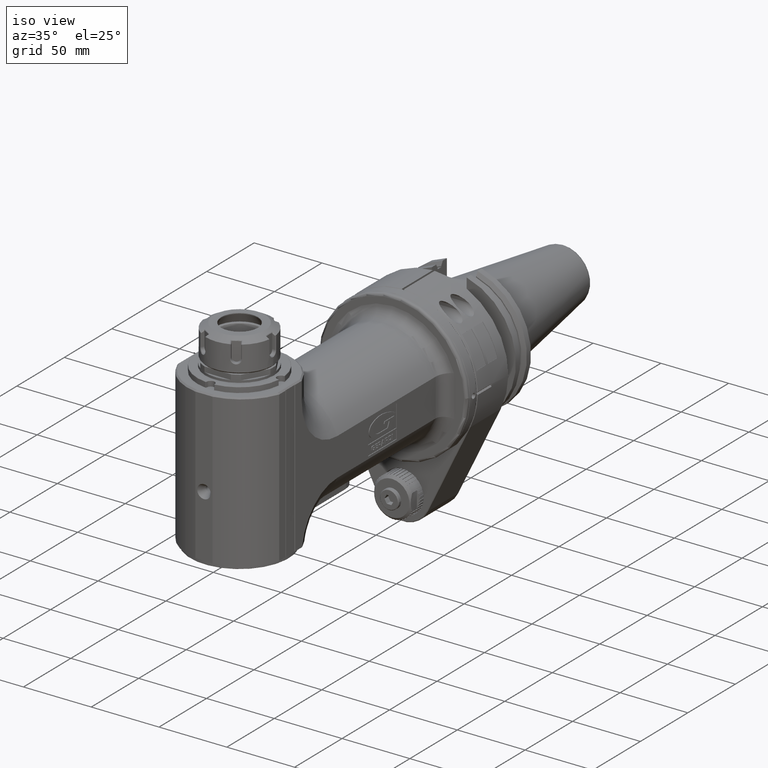
[diagram: clean part render]
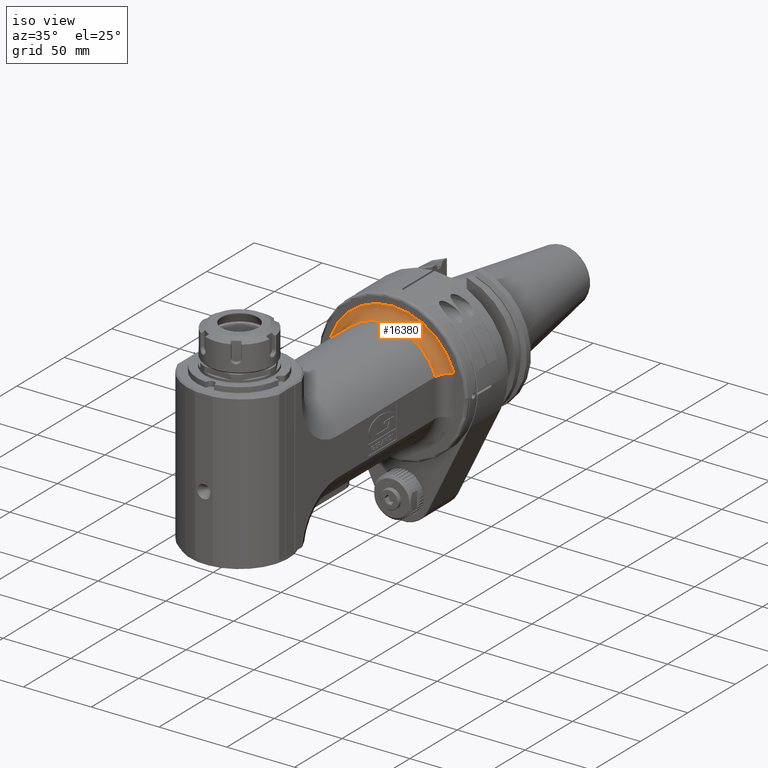
[diagram: same view with one face highlighted and labeled with its STEP entity id]
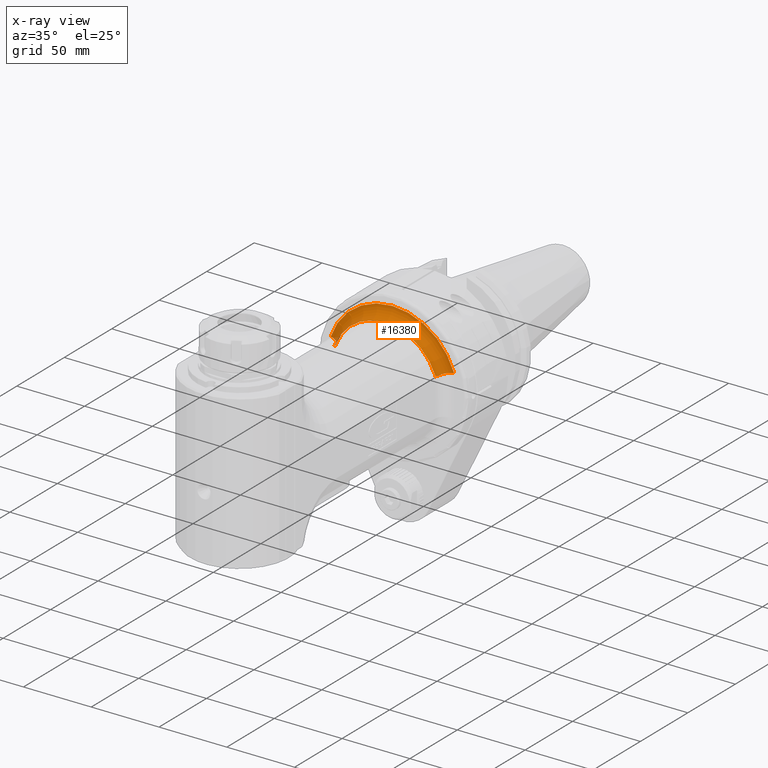
[diagram: x-ray of the same camera — body ghosted, the highlighted face saturated]
A machine part, iso view. The second image highlights one B-rep face of the part: STEP entity #16380.
The next image is the same camera in x-ray: the body ghosted, the highlighted face saturated — about 1% of this face is hidden behind the body in this view.
In plain terms, the highlighted toroidal blend (fillet) surface has major radius 48 mm and minor (blend) radius 8 mm.
Its self-contained STEP definition (entity closure, byte-faithful):
#127=TOROIDAL_SURFACE('',#17924,48.,8.);
#374=B_SPLINE_CURVE_WITH_KNOTS('',3,(#27819,#27820,#27821,#27822,#27823,
#27824,#27825,#27826,#27827,#27828,#27829,#27830,#27831,#27832),
 .UNSPECIFIED.,.F.,.F.,(4,2,2,2,2,2,4),(1.26781653330588,1.27240303134972,
1.58212816777041,1.8966172033383,2.21567516988064,2.53634682192508,2.53775043673364),
 .UNSPECIFIED.);
#375=B_SPLINE_CURVE_WITH_KNOTS('',3,(#27835,#27836,#27837,#27838,#27839,
#27840,#27841,#27842,#27843,#27844,#27845,#27846,#27847,#27848),
 .UNSPECIFIED.,.F.,.F.,(4,2,2,2,2,2,4),(-0.00140371438007318,0.,0.16908793032809,
0.338063352411454,0.653726919025217,0.96436007719276,1.26781659910101),
 .UNSPECIFIED.);
#1323=CIRCLE('',#17923,40.);
#1324=CIRCLE('',#17925,48.);
#2294=FACE_OUTER_BOUND('',#3295,.T.);
#3295=EDGE_LOOP('',(#13405,#13406,#13407,#13408));
#7146=VERTEX_POINT('',#26816);
#7351=VERTEX_POINT('',#27788);
#7362=VERTEX_POINT('',#27818);
#7363=VERTEX_POINT('',#27833);
#9481=EDGE_CURVE('',#7351,#7146,#1323,.T.);
#9482=EDGE_CURVE('',#7351,#7362,#374,.T.);
#9483=EDGE_CURVE('',#7363,#7362,#1324,.T.);
#9484=EDGE_CURVE('',#7363,#7146,#375,.T.);
#13405=ORIENTED_EDGE('',*,*,#9482,.T.);
#13406=ORIENTED_EDGE('',*,*,#9483,.F.);
#13407=ORIENTED_EDGE('',*,*,#9484,.T.);
#13408=ORIENTED_EDGE('',*,*,#9481,.F.);
#16380=ADVANCED_FACE('',(#2294),#127,.F.);
#17923=AXIS2_PLACEMENT_3D('',#27816,#21553,#21554);
#17924=AXIS2_PLACEMENT_3D('',#27817,#21555,#21556);
#17925=AXIS2_PLACEMENT_3D('',#27834,#21557,#21558);
#21553=DIRECTION('center_axis',(0.,-1.,0.));
#21554=DIRECTION('ref_axis',(0.937499999999992,0.,0.347985272676897));
#21555=DIRECTION('center_axis',(0.,-1.,0.));
#21556=DIRECTION('ref_axis',(0.999938743851058,0.,-0.0110683578533195));
#21557=DIRECTION('center_axis',(0.,1.,0.));
#21558=DIRECTION('ref_axis',(-0.947916666666669,0.,0.31851843440459));
#26816=CARTESIAN_POINT('',(-37.5,153.,13.91941090708));
#27788=CARTESIAN_POINT('',(37.5,153.,13.91941090708));
#27816=CARTESIAN_POINT('Origin',(0.,153.,0.));
#27817=CARTESIAN_POINT('Origin',(0.,153.,0.));
#27818=CARTESIAN_POINT('',(45.5,161.,15.28888485142));
#27819=CARTESIAN_POINT('Ctrl Pts',(37.5,153.,13.9194109070751));
#27820=CARTESIAN_POINT('Ctrl Pts',(37.5,153.015275994085,13.9194109070751));
#27821=CARTESIAN_POINT('Ctrl Pts',(37.500043754222,153.030554301676,13.919418765611));
#27822=CARTESIAN_POINT('Ctrl Pts',(37.5060434194072,154.077719235178,13.9204963354631));
#27823=CARTESIAN_POINT('Ctrl Pts',(37.7115006073555,155.097470008131,13.9575210996772));
#27824=CARTESIAN_POINT('Ctrl Pts',(38.5024504486263,157.015876654818,14.0984855962071));
#27825=CARTESIAN_POINT('Ctrl Pts',(39.0854334310068,157.892389231324,14.2018832311747));
#27826=CARTESIAN_POINT('Ctrl Pts',(40.5605660239731,159.380893343116,14.4592402259601));
#27827=CARTESIAN_POINT('Ctrl Pts',(41.4427232373583,159.97443042001,14.6113147200127));
#27828=CARTESIAN_POINT('Ctrl Pts',(43.3863534791056,160.787674242719,14.9401787761337));
#27829=CARTESIAN_POINT('Ctrl Pts',(44.4311819972064,160.998161182593,15.1140886834698));
#27830=CARTESIAN_POINT('Ctrl Pts',(45.4907645690754,160.999996001874,15.2873746411161));
#27831=CARTESIAN_POINT('Ctrl Pts',(45.4953822790679,161.,15.2881297733072));
#27832=CARTESIAN_POINT('Ctrl Pts',(45.5,161.,15.2888848514207));
#27833=CARTESIAN_POINT('',(-45.5,161.,15.28888485142));
#27834=CARTESIAN_POINT('Origin',(0.,161.,0.));
#27835=CARTESIAN_POINT('Ctrl Pts',(-45.5,161.,15.2888848514207));
#27836=CARTESIAN_POINT('Ctrl Pts',(-45.4953822790679,161.,15.2881297733072));
#27837=CARTESIAN_POINT('Ctrl Pts',(-45.4907645690754,160.999996001874,15.2873746411161));
#27838=CARTESIAN_POINT('Ctrl Pts',(-44.9299106951739,160.999024802905,15.1956516331886));
#27839=CARTESIAN_POINT('Ctrl Pts',(-44.3752604632515,160.940051954359,15.1041222743367));
#27840=CARTESIAN_POINT('Ctrl Pts',(-43.2875083009077,160.708043387113,14.922993598696));
#27841=CARTESIAN_POINT('Ctrl Pts',(-42.7570463285048,160.535649268866,14.8338350982531));
#27842=CARTESIAN_POINT('Ctrl Pts',(-41.2984601913138,159.88681516233,14.5865773060623));
#27843=CARTESIAN_POINT('Ctrl Pts',(-40.4377403213446,159.282060402992,14.437956484052));
#27844=CARTESIAN_POINT('Ctrl Pts',(-39.0061518628084,157.783952843007,14.1878871880418));
#27845=CARTESIAN_POINT('Ctrl Pts',(-38.4441568639358,156.909182102389,14.0881295131046));
#27846=CARTESIAN_POINT('Ctrl Pts',(-37.6915015453444,155.011283960139,13.9539208140881));
#27847=CARTESIAN_POINT('Ctrl Pts',(-37.5,154.010705714232,13.9194109070751));
#27848=CARTESIAN_POINT('Ctrl Pts',(-37.5,153.,13.9194109070751));